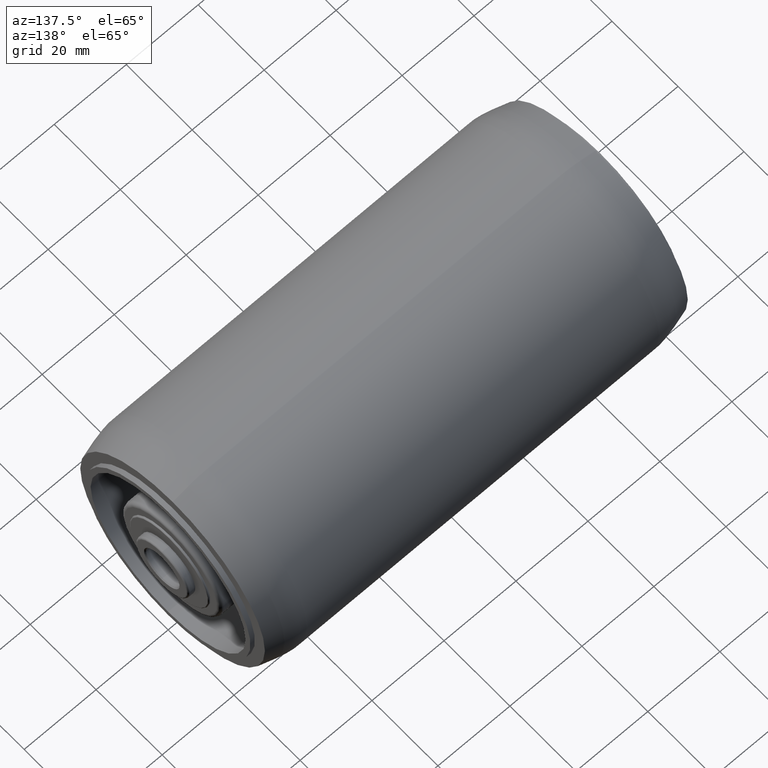
[diagram: clean part render]
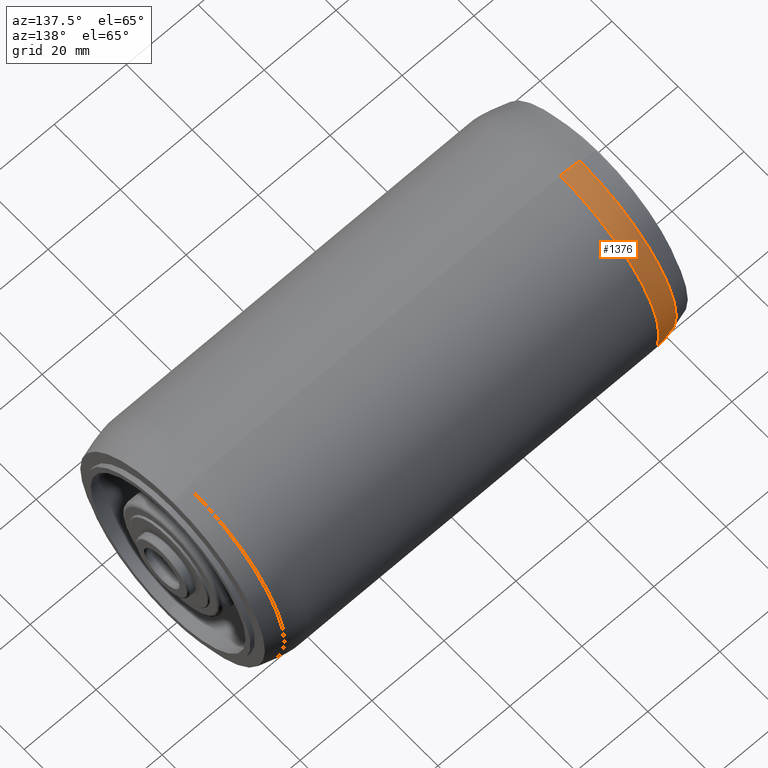
[diagram: same view with one face highlighted and labeled with its STEP entity id]
A machine part, auxiliary view. The second image highlights one B-rep face of the part: STEP entity #1376.
In plain terms, the highlighted toroidal blend (fillet) surface has major radius 10 mm and minor (blend) radius 20 mm.
Its self-contained STEP definition (entity closure, byte-faithful):
#11 = VERTEX_POINT ( 'NONE', #144 ) ;
#47 = CARTESIAN_POINT ( 'NONE',  ( -48.94890110719482124, 0.0000000000000000000, 0.0000000000000000000 ) ) ;
#105 = DIRECTION ( 'NONE',  ( 0.0000000000000000000, 1.224646799147353207E-16, 1.000000000000000000 ) ) ;
#107 = AXIS2_PLACEMENT_3D ( 'NONE', #1074, #1231, #1787 ) ;
#116 = ORIENTED_EDGE ( 'NONE', *, *, #720, .F. ) ;
#122 = AXIS2_PLACEMENT_3D ( 'NONE', #1578, #688, #1298 ) ;
#144 = CARTESIAN_POINT ( 'NONE',  ( -54.44332366514237265, 0.0000000000000000000, -29.23047895281646191 ) ) ;
#176 = AXIS2_PLACEMENT_3D ( 'NONE', #480, #922, #1075 ) ;
#201 = DIRECTION ( 'NONE',  ( 1.000000000000000000, 0.0000000000000000000, 0.0000000000000000000 ) ) ;
#267 = AXIS2_PLACEMENT_3D ( 'NONE', #47, #201, #951 ) ;
#480 = CARTESIAN_POINT ( 'NONE',  ( -48.94890110719482124, 0.0000000000000000000, -9.999999999999998224 ) ) ;
#498 = TOROIDAL_SURFACE ( 'NONE', #122, 9.999999999999998224, 20.00000000000000000 ) ;
#557 = EDGE_CURVE ( 'NONE', #1747, #1935, #1172, .T. ) ;
#612 = CARTESIAN_POINT ( 'NONE',  ( -48.94890110719482124, 3.673940397442059178E-15, -30.00000000000000000 ) ) ;
#688 = DIRECTION ( 'NONE',  ( 1.000000000000000000, 0.0000000000000000000, 0.0000000000000000000 ) ) ;
#709 = CARTESIAN_POINT ( 'NONE',  ( -48.94890110719482124, 0.0000000000000000000, 30.00000000000000000 ) ) ;
#719 = VERTEX_POINT ( 'NONE', #612 ) ;
#720 = EDGE_CURVE ( 'NONE', #1747, #11, #876, .T. ) ;
#836 = ORIENTED_EDGE ( 'NONE', *, *, #557, .T. ) ;
#876 = CIRCLE ( 'NONE', #107, 29.23047895281646191 ) ;
#892 = EDGE_CURVE ( 'NONE', #719, #1935, #1285, .T. ) ;
#916 = FACE_OUTER_BOUND ( 'NONE', #1768, .T. ) ;
#922 = DIRECTION ( 'NONE',  ( 0.0000000000000000000, -1.000000000000000000, 0.0000000000000000000 ) ) ;
#951 = DIRECTION ( 'NONE',  ( 0.0000000000000000000, 0.0000000000000000000, -1.000000000000000000 ) ) ;
#1074 = CARTESIAN_POINT ( 'NONE',  ( -54.44332366514237265, 0.0000000000000000000, 0.0000000000000000000 ) ) ;
#1075 = DIRECTION ( 'NONE',  ( 0.0000000000000000000, 0.0000000000000000000, -1.000000000000000000 ) ) ;
#1115 = ORIENTED_EDGE ( 'NONE', *, *, #892, .F. ) ;
#1172 = CIRCLE ( 'NONE', #1553, 20.00000000000000000 ) ;
#1207 = EDGE_CURVE ( 'NONE', #11, #719, #1851, .T. ) ;
#1231 = DIRECTION ( 'NONE',  ( -1.000000000000000000, -0.0000000000000000000, -0.0000000000000000000 ) ) ;
#1244 = ORIENTED_EDGE ( 'NONE', *, *, #1207, .F. ) ;
#1267 = CARTESIAN_POINT ( 'NONE',  ( -54.44332366514237265, 3.579701248711075376E-15, 29.23047895281646191 ) ) ;
#1285 = CIRCLE ( 'NONE', #267, 30.00000000000000000 ) ;
#1298 = DIRECTION ( 'NONE',  ( 0.0000000000000000000, 0.0000000000000000000, -1.000000000000000000 ) ) ;
#1376 = ADVANCED_FACE ( 'NONE', ( #916 ), #498, .T. ) ;
#1553 = AXIS2_PLACEMENT_3D ( 'NONE', #1585, #1864, #105 ) ;
#1578 = CARTESIAN_POINT ( 'NONE',  ( -48.94890110719482124, 0.0000000000000000000, 0.0000000000000000000 ) ) ;
#1585 = CARTESIAN_POINT ( 'NONE',  ( -48.94890110719482124, 1.224646799147353059E-15, 9.999999999999998224 ) ) ;
#1747 = VERTEX_POINT ( 'NONE', #1267 ) ;
#1768 = EDGE_LOOP ( 'NONE', ( #116, #836, #1115, #1244 ) ) ;
#1787 = DIRECTION ( 'NONE',  ( 0.0000000000000000000, 0.0000000000000000000, 1.000000000000000000 ) ) ;
#1851 = CIRCLE ( 'NONE', #176, 20.00000000000000000 ) ;
#1864 = DIRECTION ( 'NONE',  ( 0.0000000000000000000, 1.000000000000000000, -1.224646799147353207E-16 ) ) ;
#1935 = VERTEX_POINT ( 'NONE', #709 ) ;